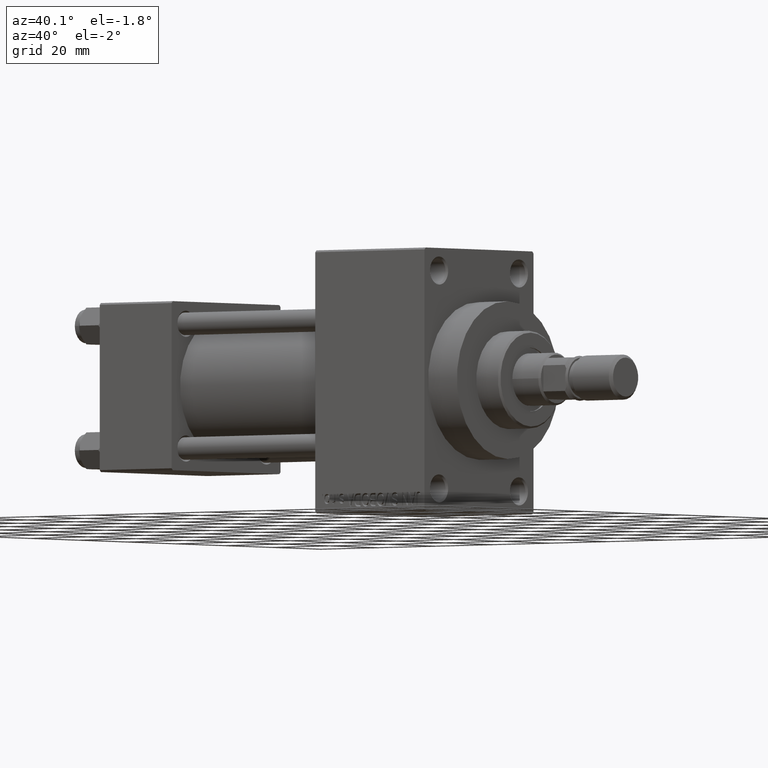
[diagram: clean part render]
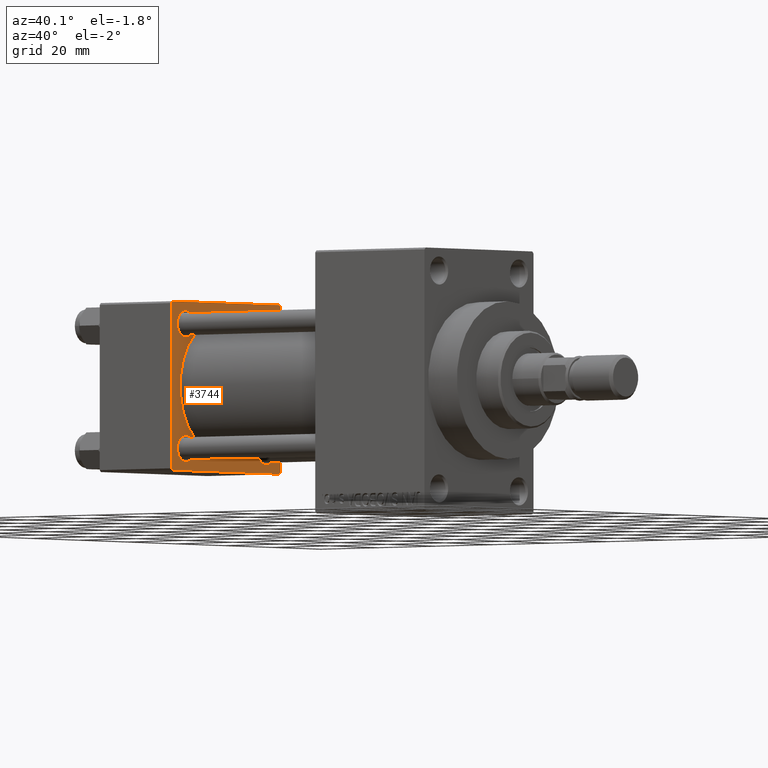
[diagram: same view with one face highlighted and labeled with its STEP entity id]
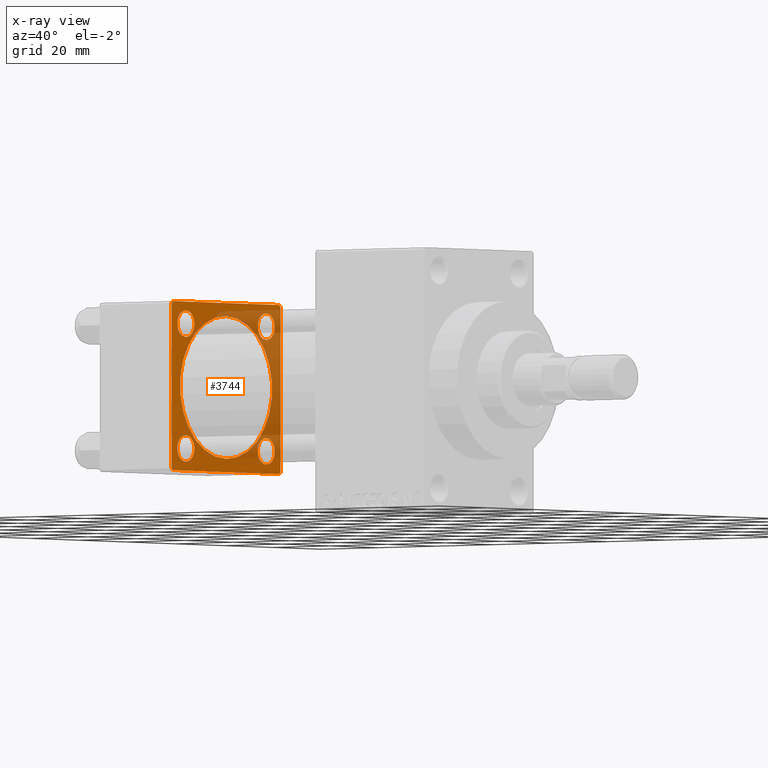
[diagram: x-ray of the same camera — body ghosted, the highlighted face saturated]
A machine part, auxiliary view. The second image highlights one B-rep face of the part: STEP entity #3744.
The next image is the same camera in x-ray: the body ghosted, the highlighted face saturated — about 34% of this face is hidden behind the body in this view.
In plain terms, the highlighted planar face has unit normal (-1, 0, 0).
Its self-contained STEP definition (entity closure, byte-faithful):
#613 = CARTESIAN_POINT ( 'NONE',  ( 25.00000000000000000, 22.50000000000000000, 22.50000000000000355 ) ) ;
#629 = CARTESIAN_POINT ( 'NONE',  ( 25.00000000000000000, -22.50000000000000000, 22.50000000000000000 ) ) ;
#935 = DIRECTION ( 'NONE',  ( -0.000000000000000000, 0.000000000000000000, 1.000000000000000000 ) ) ;
#990 = EDGE_CURVE ( 'NONE', #37192, #49102, #40784, .T. ) ;
#1046 = AXIS2_PLACEMENT_3D ( 'NONE', #37263, #41023, #6691 ) ;
#1197 = FACE_BOUND ( 'NONE', #38718, .T. ) ;
#1897 = DIRECTION ( 'NONE',  ( 0.000000000000000000, -1.000000000000000000, -2.312964634635742957E-16 ) ) ;
#1924 = VERTEX_POINT ( 'NONE', #45708 ) ;
#3036 = LINE ( 'NONE', #21588, #43280 ) ;
#3408 = DIRECTION ( 'NONE',  ( 0.000000000000000000, 0.000000000000000000, -1.000000000000000000 ) ) ;
#3580 = CARTESIAN_POINT ( 'NONE',  ( 25.00000000000000000, 16.59999999999999787, 13.10000000000000142 ) ) ;
#3744 = ADVANCED_FACE ( 'NONE', ( #1197, #30804, #38310, #39044, #46307, #8225 ), #15518, .F. ) ;
#3826 = DIRECTION ( 'NONE',  ( 0.000000000000000000, 0.000000000000000000, 1.000000000000000000 ) ) ;
#4169 = CIRCLE ( 'NONE', #17820, 3.500000000000003109 ) ;
#4645 = LINE ( 'NONE', #629, #11910 ) ;
#4707 = CARTESIAN_POINT ( 'NONE',  ( 25.00000000000000000, 0.000000000000000000, 0.000000000000000000 ) ) ;
#4846 = VERTEX_POINT ( 'NONE', #45273 ) ;
#6403 = EDGE_LOOP ( 'NONE', ( #25858, #19326 ) ) ;
#6691 = DIRECTION ( 'NONE',  ( 0.000000000000000000, 0.000000000000000000, 1.000000000000000000 ) ) ;
#7174 = VERTEX_POINT ( 'NONE', #46074 ) ;
#7449 = CARTESIAN_POINT ( 'NONE',  ( 25.00000000000000000, -16.59999999999999076, 16.60000000000000853 ) ) ;
#7545 = CIRCLE ( 'NONE', #41959, 3.500000000000020428 ) ;
#7613 = CIRCLE ( 'NONE', #27604, 3.500000000000003109 ) ;
#8077 = EDGE_CURVE ( 'NONE', #34978, #8180, #41252, .T. ) ;
#8110 = VECTOR ( 'NONE', #3408, 1000.000000000000000 ) ;
#8118 = DIRECTION ( 'NONE',  ( 0.000000000000000000, 0.000000000000000000, 1.000000000000000000 ) ) ;
#8175 = DIRECTION ( 'NONE',  ( 0.000000000000000000, 0.000000000000000000, 1.000000000000000000 ) ) ;
#8180 = VERTEX_POINT ( 'NONE', #46260 ) ;
#8225 = FACE_OUTER_BOUND ( 'NONE', #45587, .T. ) ;
#8246 = CIRCLE ( 'NONE', #1046, 3.500000000000016875 ) ;
#8558 = AXIS2_PLACEMENT_3D ( 'NONE', #41009, #10928, #21979 ) ;
#9791 = CIRCLE ( 'NONE', #44209, 3.500000000000003109 ) ;
#9924 = CARTESIAN_POINT ( 'NONE',  ( 25.00000000000000000, -16.59999999999999076, -13.09999999999999076 ) ) ;
#10555 = CARTESIAN_POINT ( 'NONE',  ( 25.00000000000000000, 22.50000000000000000, 22.50000000000000355 ) ) ;
#10928 = DIRECTION ( 'NONE',  ( -1.000000000000000000, 0.000000000000000000, -0.000000000000000000 ) ) ;
#10986 = VERTEX_POINT ( 'NONE', #9924 ) ;
#11318 = CARTESIAN_POINT ( 'NONE',  ( 25.00000000000000000, 21.99999999999999289, 22.50000000000000355 ) ) ;
#11634 = CARTESIAN_POINT ( 'NONE',  ( 25.00000000000000000, 16.59999999999999787, 16.60000000000000497 ) ) ;
#11671 = VERTEX_POINT ( 'NONE', #27625 ) ;
#11910 = VECTOR ( 'NONE', #43735, 1000.000000000000000 ) ;
#12079 = DIRECTION ( 'NONE',  ( -1.000000000000000000, 0.000000000000000000, -0.000000000000000000 ) ) ;
#12719 = ORIENTED_EDGE ( 'NONE', *, *, #30964, .T. ) ;
#13478 = CARTESIAN_POINT ( 'NONE',  ( 25.00000000000000000, -2.602085213965210642E-15, 19.00000000000000000 ) ) ;
#13780 = AXIS2_PLACEMENT_3D ( 'NONE', #36723, #21211, #20961 ) ;
#14328 = LINE ( 'NONE', #10555, #34861 ) ;
#14612 = CIRCLE ( 'NONE', #27502, 3.500000000000016875 ) ;
#14648 = AXIS2_PLACEMENT_3D ( 'NONE', #17152, #28670, #44440 ) ;
#15518 = PLANE ( 'NONE',  #28293 ) ;
#16182 = EDGE_CURVE ( 'NONE', #4846, #1924, #49400, .T. ) ;
#17152 = CARTESIAN_POINT ( 'NONE',  ( 25.00000000000000000, -2.602085213965210642E-15, 0.000000000000000000 ) ) ;
#17365 = ORIENTED_EDGE ( 'NONE', *, *, #23424, .F. ) ;
#17820 = AXIS2_PLACEMENT_3D ( 'NONE', #11634, #39427, #8118 ) ;
#17827 = CARTESIAN_POINT ( 'NONE',  ( 25.00000000000000000, 21.99999999999999289, 22.50000000000000355 ) ) ;
#17896 = CARTESIAN_POINT ( 'NONE',  ( 25.00000000000000000, 16.59999999999999787, 20.10000000000000853 ) ) ;
#18452 = ORIENTED_EDGE ( 'NONE', *, *, #29170, .F. ) ;
#18497 = DIRECTION ( 'NONE',  ( 0.000000000000000000, 0.000000000000000000, 1.000000000000000000 ) ) ;
#18957 = LINE ( 'NONE', #613, #8110 ) ;
#19326 = ORIENTED_EDGE ( 'NONE', *, *, #28291, .T. ) ;
#19634 = AXIS2_PLACEMENT_3D ( 'NONE', #7449, #22503, #25748 ) ;
#19847 = CARTESIAN_POINT ( 'NONE',  ( 25.00000000000000000, -21.99999999999998579, -22.50000000000000711 ) ) ;
#20183 = CARTESIAN_POINT ( 'NONE',  ( 25.00000000000000000, 21.99999999999999289, -22.49999999999999645 ) ) ;
#20595 = LINE ( 'NONE', #19847, #32799 ) ;
#20895 = CARTESIAN_POINT ( 'NONE',  ( 25.00000000000000000, -21.99999999999997868, 22.50000000000000000 ) ) ;
#20961 = DIRECTION ( 'NONE',  ( 0.000000000000000000, 0.000000000000000000, 1.000000000000000000 ) ) ;
#21189 = ORIENTED_EDGE ( 'NONE', *, *, #28060, .T. ) ;
#21211 = DIRECTION ( 'NONE',  ( 1.000000000000000000, -0.000000000000000000, 0.000000000000000000 ) ) ;
#21478 = VERTEX_POINT ( 'NONE', #3580 ) ;
#21536 = ORIENTED_EDGE ( 'NONE', *, *, #35288, .T. ) ;
#21588 = CARTESIAN_POINT ( 'NONE',  ( 25.00000000000000000, -22.50000000000000000, 22.00000000000000000 ) ) ;
#21635 = DIRECTION ( 'NONE',  ( -1.000000000000000000, 0.000000000000000000, -0.000000000000000000 ) ) ;
#21788 = CARTESIAN_POINT ( 'NONE',  ( 25.00000000000000000, -22.50000000000000000, -21.99999999999997158 ) ) ;
#21856 = EDGE_CURVE ( 'NONE', #28330, #7174, #3036, .T. ) ;
#21868 = VERTEX_POINT ( 'NONE', #17827 ) ;
#21979 = DIRECTION ( 'NONE',  ( 0.000000000000000000, 0.000000000000000000, 1.000000000000000000 ) ) ;
#22503 = DIRECTION ( 'NONE',  ( -1.000000000000000000, 0.000000000000000000, -0.000000000000000000 ) ) ;
#23424 = EDGE_CURVE ( 'NONE', #11671, #49102, #18957, .T. ) ;
#23916 = ORIENTED_EDGE ( 'NONE', *, *, #35467, .T. ) ;
#23969 = ORIENTED_EDGE ( 'NONE', *, *, #990, .T. ) ;
#24043 = EDGE_CURVE ( 'NONE', #38516, #32924, #35365, .T. ) ;
#24201 = CARTESIAN_POINT ( 'NONE',  ( 25.00000000000000000, -16.59999999999999076, -16.60000000000000853 ) ) ;
#24815 = VECTOR ( 'NONE', #1897, 1000.000000000000000 ) ;
#25215 = LINE ( 'NONE', #32252, #24815 ) ;
#25343 = EDGE_CURVE ( 'NONE', #21478, #47397, #9791, .T. ) ;
#25381 = CARTESIAN_POINT ( 'NONE',  ( 25.00000000000000000, -16.59999999999999076, 16.60000000000000853 ) ) ;
#25500 = CARTESIAN_POINT ( 'NONE',  ( 25.00000000000000000, 16.59999999999999787, 16.60000000000000497 ) ) ;
#25748 = DIRECTION ( 'NONE',  ( 0.000000000000000000, 0.000000000000000000, 1.000000000000000000 ) ) ;
#25782 = VECTOR ( 'NONE', #36524, 1000.000000000000000 ) ;
#25832 = DIRECTION ( 'NONE',  ( -0.000000000000000000, -0.7071067811865525687, -0.7071067811865425767 ) ) ;
#25853 = EDGE_LOOP ( 'NONE', ( #33198, #18452 ) ) ;
#25858 = ORIENTED_EDGE ( 'NONE', *, *, #25343, .T. ) ;
#26220 = ORIENTED_EDGE ( 'NONE', *, *, #21856, .T. ) ;
#27224 = DIRECTION ( 'NONE',  ( -1.000000000000000000, 0.000000000000000000, -0.000000000000000000 ) ) ;
#27271 = ORIENTED_EDGE ( 'NONE', *, *, #48253, .F. ) ;
#27502 = AXIS2_PLACEMENT_3D ( 'NONE', #24201, #27224, #8175 ) ;
#27604 = AXIS2_PLACEMENT_3D ( 'NONE', #41927, #12079, #3826 ) ;
#27625 = CARTESIAN_POINT ( 'NONE',  ( 25.00000000000000000, 22.50000000000000000, 21.99999999999999645 ) ) ;
#28060 = EDGE_CURVE ( 'NONE', #10986, #31337, #14612, .T. ) ;
#28238 = CARTESIAN_POINT ( 'NONE',  ( 25.00000000000000000, -16.59999999999999076, 20.10000000000002629 ) ) ;
#28291 = EDGE_CURVE ( 'NONE', #47397, #21478, #4169, .T. ) ;
#28293 = AXIS2_PLACEMENT_3D ( 'NONE', #4707, #31539, #935 ) ;
#28330 = VERTEX_POINT ( 'NONE', #20895 ) ;
#28336 = VECTOR ( 'NONE', #38137, 1000.000000000000114 ) ;
#28670 = DIRECTION ( 'NONE',  ( 1.000000000000000000, -0.000000000000000000, 0.000000000000000000 ) ) ;
#29170 = EDGE_CURVE ( 'NONE', #32924, #38516, #33053, .T. ) ;
#30065 = VERTEX_POINT ( 'NONE', #33000 ) ;
#30458 = ORIENTED_EDGE ( 'NONE', *, *, #46676, .T. ) ;
#30601 = EDGE_LOOP ( 'NONE', ( #36502, #45635 ) ) ;
#30804 = FACE_BOUND ( 'NONE', #37143, .T. ) ;
#30964 = EDGE_CURVE ( 'NONE', #31337, #10986, #8246, .T. ) ;
#31024 = CARTESIAN_POINT ( 'NONE',  ( 25.00000000000000000, 22.50000000000000000, -21.99999999999996803 ) ) ;
#31059 = CARTESIAN_POINT ( 'NONE',  ( 25.00000000000000000, -2.752562955852396712E-16, -19.00000000000000000 ) ) ;
#31337 = VERTEX_POINT ( 'NONE', #42197 ) ;
#31539 = DIRECTION ( 'NONE',  ( -1.000000000000000000, 0.000000000000000000, -0.000000000000000000 ) ) ;
#32196 = ORIENTED_EDGE ( 'NONE', *, *, #44072, .T. ) ;
#32252 = CARTESIAN_POINT ( 'NONE',  ( 25.00000000000000000, 22.50000000000000000, -22.49999999999999645 ) ) ;
#32311 = EDGE_CURVE ( 'NONE', #11671, #21868, #45649, .T. ) ;
#32547 = EDGE_CURVE ( 'NONE', #8180, #34978, #7545, .T. ) ;
#32799 = VECTOR ( 'NONE', #35863, 1000.000000000000000 ) ;
#32924 = VERTEX_POINT ( 'NONE', #31059 ) ;
#33000 = CARTESIAN_POINT ( 'NONE',  ( 25.00000000000000000, -21.99999999999997158, -22.50000000000000711 ) ) ;
#33053 = CIRCLE ( 'NONE', #14648, 19.00000000000000000 ) ;
#33198 = ORIENTED_EDGE ( 'NONE', *, *, #24043, .F. ) ;
#34861 = VECTOR ( 'NONE', #41134, 1000.000000000000000 ) ;
#34978 = VERTEX_POINT ( 'NONE', #28238 ) ;
#35288 = EDGE_CURVE ( 'NONE', #1924, #4846, #7613, .T. ) ;
#35365 = CIRCLE ( 'NONE', #13780, 19.00000000000000000 ) ;
#35467 = EDGE_CURVE ( 'NONE', #21868, #28330, #14328, .T. ) ;
#35620 = ORIENTED_EDGE ( 'NONE', *, *, #16182, .T. ) ;
#35788 = ORIENTED_EDGE ( 'NONE', *, *, #32311, .T. ) ;
#35863 = DIRECTION ( 'NONE',  ( 0.000000000000000000, 0.7071067811865426878, -0.7071067811865524577 ) ) ;
#36502 = ORIENTED_EDGE ( 'NONE', *, *, #32547, .T. ) ;
#36524 = DIRECTION ( 'NONE',  ( -0.000000000000000000, 0.7071067811865426878, 0.7071067811865524577 ) ) ;
#36723 = CARTESIAN_POINT ( 'NONE',  ( 25.00000000000000000, -2.602085213965210642E-15, 0.000000000000000000 ) ) ;
#36740 = VERTEX_POINT ( 'NONE', #21788 ) ;
#37143 = EDGE_LOOP ( 'NONE', ( #35620, #21536 ) ) ;
#37192 = VERTEX_POINT ( 'NONE', #20183 ) ;
#37263 = CARTESIAN_POINT ( 'NONE',  ( 25.00000000000000000, -16.59999999999999076, -16.60000000000000853 ) ) ;
#38137 = DIRECTION ( 'NONE',  ( 0.000000000000000000, -0.7071067811865474617, 0.7071067811865474617 ) ) ;
#38310 = FACE_BOUND ( 'NONE', #30601, .T. ) ;
#38516 = VERTEX_POINT ( 'NONE', #13478 ) ;
#38718 = EDGE_LOOP ( 'NONE', ( #12719, #21189 ) ) ;
#39044 = FACE_BOUND ( 'NONE', #6403, .T. ) ;
#39427 = DIRECTION ( 'NONE',  ( -1.000000000000000000, 0.000000000000000000, -0.000000000000000000 ) ) ;
#40784 = LINE ( 'NONE', #48560, #25782 ) ;
#41009 = CARTESIAN_POINT ( 'NONE',  ( 25.00000000000000000, 16.59999999999999787, -16.60000000000000497 ) ) ;
#41023 = DIRECTION ( 'NONE',  ( -1.000000000000000000, 0.000000000000000000, -0.000000000000000000 ) ) ;
#41134 = DIRECTION ( 'NONE',  ( 0.000000000000000000, -1.000000000000000000, -7.709882115452476934E-17 ) ) ;
#41252 = CIRCLE ( 'NONE', #19634, 3.500000000000020428 ) ;
#41780 = DIRECTION ( 'NONE',  ( -1.000000000000000000, 0.000000000000000000, -0.000000000000000000 ) ) ;
#41927 = CARTESIAN_POINT ( 'NONE',  ( 25.00000000000000000, 16.59999999999999787, -16.60000000000000497 ) ) ;
#41959 = AXIS2_PLACEMENT_3D ( 'NONE', #25381, #21635, #44925 ) ;
#42197 = CARTESIAN_POINT ( 'NONE',  ( 25.00000000000000000, -16.59999999999999076, -20.10000000000002274 ) ) ;
#43280 = VECTOR ( 'NONE', #25832, 999.9999999999998863 ) ;
#43735 = DIRECTION ( 'NONE',  ( 0.000000000000000000, 0.000000000000000000, -1.000000000000000000 ) ) ;
#44072 = EDGE_CURVE ( 'NONE', #7174, #36740, #4645, .T. ) ;
#44209 = AXIS2_PLACEMENT_3D ( 'NONE', #25500, #41780, #18497 ) ;
#44440 = DIRECTION ( 'NONE',  ( 0.000000000000000000, 0.000000000000000000, 1.000000000000000000 ) ) ;
#44925 = DIRECTION ( 'NONE',  ( 0.000000000000000000, 0.000000000000000000, 1.000000000000000000 ) ) ;
#45273 = CARTESIAN_POINT ( 'NONE',  ( 25.00000000000000000, 16.59999999999999787, -20.10000000000000853 ) ) ;
#45587 = EDGE_LOOP ( 'NONE', ( #27271, #23969, #17365, #35788, #23916, #26220, #32196, #30458 ) ) ;
#45635 = ORIENTED_EDGE ( 'NONE', *, *, #8077, .T. ) ;
#45649 = LINE ( 'NONE', #11318, #28336 ) ;
#45708 = CARTESIAN_POINT ( 'NONE',  ( 25.00000000000000000, 16.59999999999999787, -13.10000000000000142 ) ) ;
#46074 = CARTESIAN_POINT ( 'NONE',  ( 25.00000000000000000, -22.50000000000000000, 22.00000000000000000 ) ) ;
#46260 = CARTESIAN_POINT ( 'NONE',  ( 25.00000000000000000, -16.59999999999999076, 13.09999999999998721 ) ) ;
#46307 = FACE_BOUND ( 'NONE', #25853, .T. ) ;
#46676 = EDGE_CURVE ( 'NONE', #36740, #30065, #20595, .T. ) ;
#47397 = VERTEX_POINT ( 'NONE', #17896 ) ;
#48253 = EDGE_CURVE ( 'NONE', #37192, #30065, #25215, .T. ) ;
#48560 = CARTESIAN_POINT ( 'NONE',  ( 25.00000000000000000, 22.50000000000000000, -21.99999999999998224 ) ) ;
#49102 = VERTEX_POINT ( 'NONE', #31024 ) ;
#49400 = CIRCLE ( 'NONE', #8558, 3.500000000000003109 ) ;